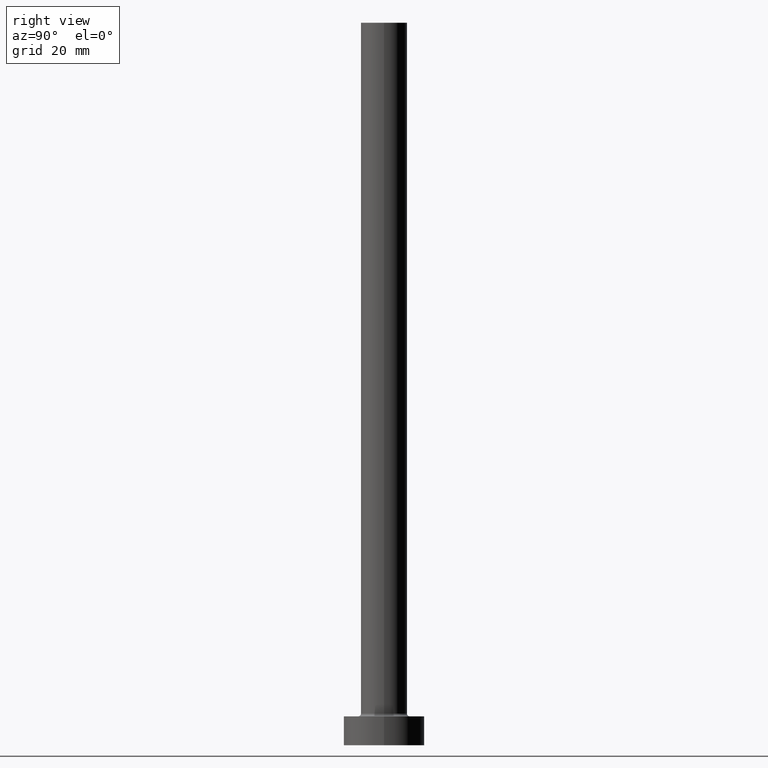
[diagram: clean part render]
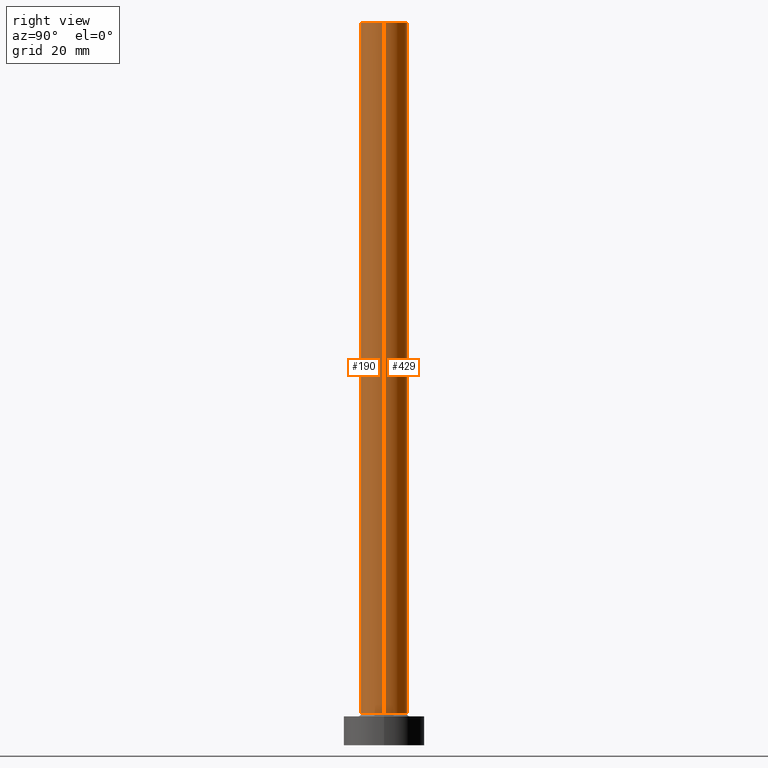
[diagram: same view with one multi-face feature highlighted, each face labeled with its STEP entity id]
A machine part, right view. The highlighted faces form ONE feature: a constant-radius fillet chain: 2 tangent blend faces with common blend radius 4 mm. The faces share edges in the B-rep.
Their STEP definitions:
[1] entity #429 (Cylinder):
#24 = ORIENTED_EDGE ( 'NONE', *, *, #367, .T. ) ;
#26 = CIRCLE ( 'NONE', #290, 4.000000000000000000 ) ;
#30 = CARTESIAN_POINT ( 'NONE',  ( 0.000000000000000000, 0.000000000000000000, 5.500000000000005329 ) ) ;
#37 = ORIENTED_EDGE ( 'NONE', *, *, #193, .F. ) ;
#43 = LINE ( 'NONE', #331, #426 ) ;
#62 = VERTEX_POINT ( 'NONE', #337 ) ;
#64 = DIRECTION ( 'NONE',  ( 1.000000000000000000, 0.000000000000000000, 0.000000000000000000 ) ) ;
#91 = AXIS2_PLACEMENT_3D ( 'NONE', #287, #214, #103 ) ;
#93 = DIRECTION ( 'NONE',  ( 0.000000000000000000, 0.000000000000000000, 1.000000000000000000 ) ) ;
#100 = EDGE_LOOP ( 'NONE', ( #37, #24, #406, #274 ) ) ;
#103 = DIRECTION ( 'NONE',  ( -1.000000000000000000, 0.000000000000000000, 0.000000000000000000 ) ) ;
#136 = DIRECTION ( 'NONE',  ( -0.000000000000000000, -0.000000000000000000, -1.000000000000000000 ) ) ;
#163 = CARTESIAN_POINT ( 'NONE',  ( 4.000000000000000000, 4.898587196589412829E-16, 5.500000000000005329 ) ) ;
#193 = EDGE_CURVE ( 'NONE', #226, #422, #309, .T. ) ;
#207 = LINE ( 'NONE', #249, #223 ) ;
#214 = DIRECTION ( 'NONE',  ( -0.000000000000000000, -0.000000000000000000, -1.000000000000000000 ) ) ;
#221 = EDGE_CURVE ( 'NONE', #398, #62, #26, .T. ) ;
#223 = VECTOR ( 'NONE', #136, 1000.000000000000000 ) ;
#226 = VERTEX_POINT ( 'NONE', #362 ) ;
#249 = CARTESIAN_POINT ( 'NONE',  ( 4.000000000000000000, 4.898587196589412829E-16, 125.0000000000000000 ) ) ;
#274 = ORIENTED_EDGE ( 'NONE', *, *, #295, .F. ) ;
#276 = CYLINDRICAL_SURFACE ( 'NONE', #91, 4.000000000000000000 ) ;
#286 = DIRECTION ( 'NONE',  ( 1.000000000000000000, 0.000000000000000000, 0.000000000000000000 ) ) ;
#287 = CARTESIAN_POINT ( 'NONE',  ( 0.000000000000000000, 0.000000000000000000, 125.0000000000000000 ) ) ;
#290 = AXIS2_PLACEMENT_3D ( 'NONE', #30, #355, #286 ) ;
#295 = EDGE_CURVE ( 'NONE', #422, #62, #43, .T. ) ;
#296 = DIRECTION ( 'NONE',  ( -0.000000000000000000, -0.000000000000000000, -1.000000000000000000 ) ) ;
#309 = CIRCLE ( 'NONE', #432, 4.000000000000000000 ) ;
#331 = CARTESIAN_POINT ( 'NONE',  ( -4.000000000000000000, 0.000000000000000000, 125.0000000000000000 ) ) ;
#337 = CARTESIAN_POINT ( 'NONE',  ( -4.000000000000000000, 0.000000000000000000, 5.500000000000005329 ) ) ;
#354 = CARTESIAN_POINT ( 'NONE',  ( -4.000000000000000000, 0.000000000000000000, 125.0000000000000000 ) ) ;
#355 = DIRECTION ( 'NONE',  ( 0.000000000000000000, 0.000000000000000000, 1.000000000000000000 ) ) ;
#362 = CARTESIAN_POINT ( 'NONE',  ( 4.000000000000000000, 4.898587196589412829E-16, 125.0000000000000000 ) ) ;
#367 = EDGE_CURVE ( 'NONE', #226, #398, #207, .T. ) ;
#384 = FACE_OUTER_BOUND ( 'NONE', #100, .T. ) ;
#398 = VERTEX_POINT ( 'NONE', #163 ) ;
#406 = ORIENTED_EDGE ( 'NONE', *, *, #221, .T. ) ;
#417 = CARTESIAN_POINT ( 'NONE',  ( 0.000000000000000000, 0.000000000000000000, 125.0000000000000000 ) ) ;
#422 = VERTEX_POINT ( 'NONE', #354 ) ;
#426 = VECTOR ( 'NONE', #296, 1000.000000000000000 ) ;
#429 = ADVANCED_FACE ( 'NONE', ( #384 ), #276, .T. ) ;
#432 = AXIS2_PLACEMENT_3D ( 'NONE', #417, #93, #64 ) ;
[2] entity #190 (Cylinder):
#13 = DIRECTION ( 'NONE',  ( 1.000000000000000000, 0.000000000000000000, 0.000000000000000000 ) ) ;
#43 = LINE ( 'NONE', #331, #426 ) ;
#56 = EDGE_CURVE ( 'NONE', #422, #226, #159, .T. ) ;
#62 = VERTEX_POINT ( 'NONE', #337 ) ;
#66 = ORIENTED_EDGE ( 'NONE', *, *, #295, .T. ) ;
#82 = CARTESIAN_POINT ( 'NONE',  ( 0.000000000000000000, 0.000000000000000000, 5.500000000000005329 ) ) ;
#95 = EDGE_LOOP ( 'NONE', ( #104, #390, #66, #219 ) ) ;
#98 = EDGE_CURVE ( 'NONE', #62, #398, #414, .T. ) ;
#104 = ORIENTED_EDGE ( 'NONE', *, *, #367, .F. ) ;
#136 = DIRECTION ( 'NONE',  ( -0.000000000000000000, -0.000000000000000000, -1.000000000000000000 ) ) ;
#159 = CIRCLE ( 'NONE', #283, 4.000000000000000000 ) ;
#161 = CARTESIAN_POINT ( 'NONE',  ( 0.000000000000000000, 0.000000000000000000, 125.0000000000000000 ) ) ;
#163 = CARTESIAN_POINT ( 'NONE',  ( 4.000000000000000000, 4.898587196589412829E-16, 5.500000000000005329 ) ) ;
#167 = AXIS2_PLACEMENT_3D ( 'NONE', #173, #447, #423 ) ;
#173 = CARTESIAN_POINT ( 'NONE',  ( 0.000000000000000000, 0.000000000000000000, 125.0000000000000000 ) ) ;
#190 = ADVANCED_FACE ( 'NONE', ( #453 ), #205, .T. ) ;
#205 = CYLINDRICAL_SURFACE ( 'NONE', #167, 4.000000000000000000 ) ;
#207 = LINE ( 'NONE', #249, #223 ) ;
#219 = ORIENTED_EDGE ( 'NONE', *, *, #98, .T. ) ;
#223 = VECTOR ( 'NONE', #136, 1000.000000000000000 ) ;
#226 = VERTEX_POINT ( 'NONE', #362 ) ;
#249 = CARTESIAN_POINT ( 'NONE',  ( 4.000000000000000000, 4.898587196589412829E-16, 125.0000000000000000 ) ) ;
#266 = DIRECTION ( 'NONE',  ( 1.000000000000000000, 0.000000000000000000, 0.000000000000000000 ) ) ;
#283 = AXIS2_PLACEMENT_3D ( 'NONE', #161, #301, #266 ) ;
#295 = EDGE_CURVE ( 'NONE', #422, #62, #43, .T. ) ;
#296 = DIRECTION ( 'NONE',  ( -0.000000000000000000, -0.000000000000000000, -1.000000000000000000 ) ) ;
#301 = DIRECTION ( 'NONE',  ( 0.000000000000000000, 0.000000000000000000, 1.000000000000000000 ) ) ;
#331 = CARTESIAN_POINT ( 'NONE',  ( -4.000000000000000000, 0.000000000000000000, 125.0000000000000000 ) ) ;
#337 = CARTESIAN_POINT ( 'NONE',  ( -4.000000000000000000, 0.000000000000000000, 5.500000000000005329 ) ) ;
#339 = AXIS2_PLACEMENT_3D ( 'NONE', #82, #445, #13 ) ;
#354 = CARTESIAN_POINT ( 'NONE',  ( -4.000000000000000000, 0.000000000000000000, 125.0000000000000000 ) ) ;
#362 = CARTESIAN_POINT ( 'NONE',  ( 4.000000000000000000, 4.898587196589412829E-16, 125.0000000000000000 ) ) ;
#367 = EDGE_CURVE ( 'NONE', #226, #398, #207, .T. ) ;
#390 = ORIENTED_EDGE ( 'NONE', *, *, #56, .F. ) ;
#398 = VERTEX_POINT ( 'NONE', #163 ) ;
#414 = CIRCLE ( 'NONE', #339, 4.000000000000000000 ) ;
#422 = VERTEX_POINT ( 'NONE', #354 ) ;
#423 = DIRECTION ( 'NONE',  ( -1.000000000000000000, 0.000000000000000000, 0.000000000000000000 ) ) ;
#426 = VECTOR ( 'NONE', #296, 1000.000000000000000 ) ;
#445 = DIRECTION ( 'NONE',  ( 0.000000000000000000, 0.000000000000000000, 1.000000000000000000 ) ) ;
#447 = DIRECTION ( 'NONE',  ( -0.000000000000000000, -0.000000000000000000, -1.000000000000000000 ) ) ;
#453 = FACE_OUTER_BOUND ( 'NONE', #95, .T. ) ;